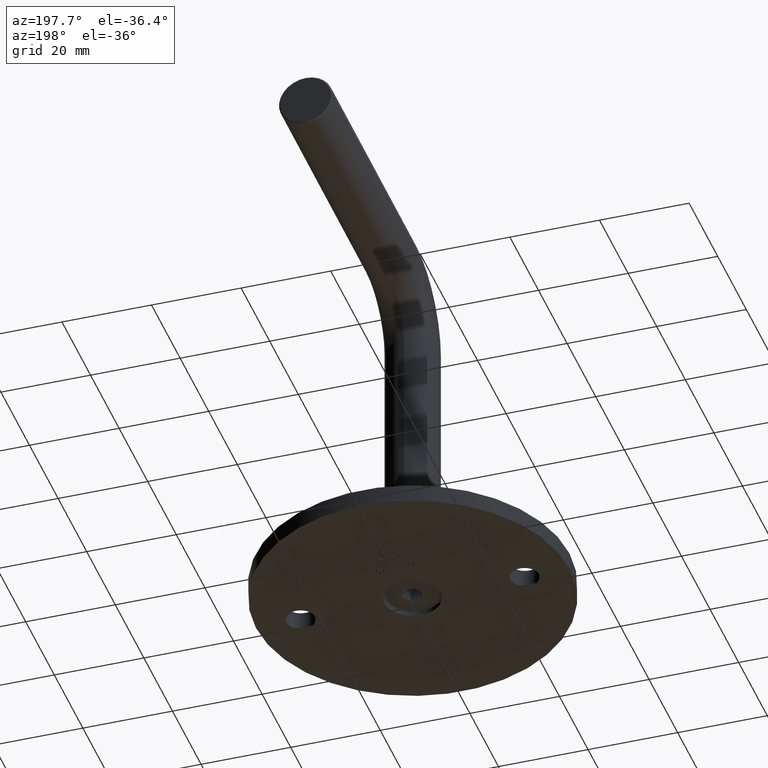
[diagram: clean part render]
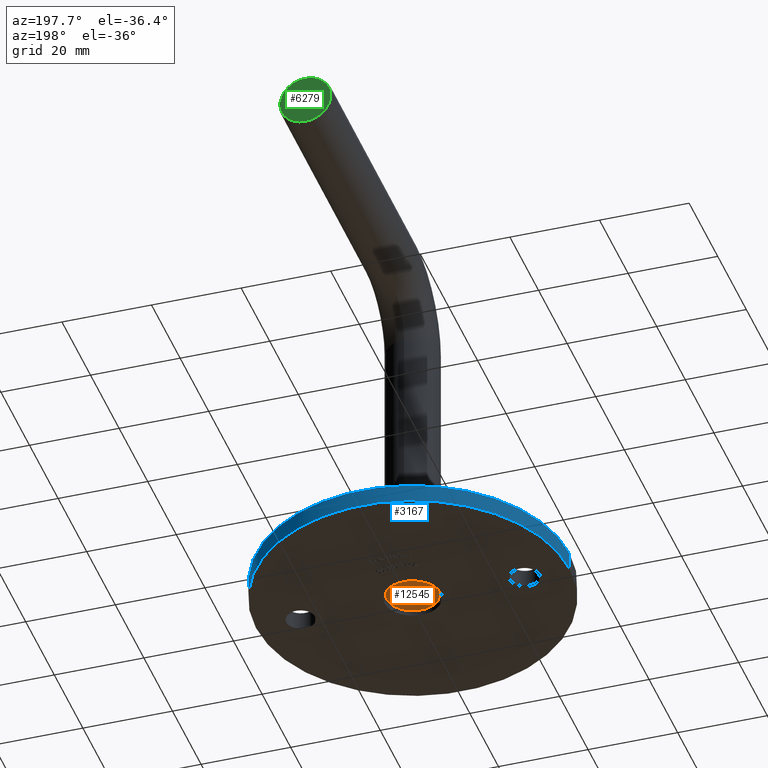
[diagram: same view with three faces highlighted in distinct colors, each labeled with its STEP entity id]
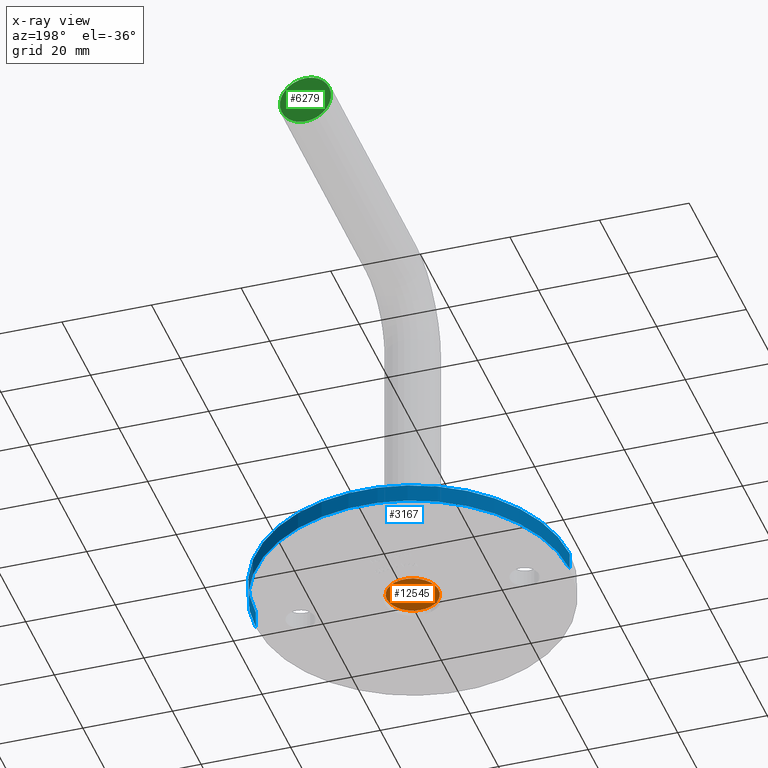
[diagram: x-ray of the same camera — body ghosted, the three highlighted faces saturated]
A machine part, auxiliary view with three faces highlighted in distinct colors.
The next image is the same camera in x-ray (body ghosted, the three faces saturated) — at least one of them is partly hidden behind the body in this view.
Their STEP definitions:

[orange] entity #12545 — the highlighted planar face has unit normal (0, -0, -1).
#76 = VERTEX_POINT ( 'NONE', #1816 ) ;
#123 = DIRECTION ( 'NONE',  ( -1.000000000000000000, 0.000000000000000000, -0.000000000000000000 ) ) ;
#284 = CARTESIAN_POINT ( 'NONE',  ( 0.000000000000000000, 0.000000000000000000, 0.000000000000000000 ) ) ;
#731 = VERTEX_POINT ( 'NONE', #7394 ) ;
#1443 = DIRECTION ( 'NONE',  ( 0.000000000000000000, 0.000000000000000000, 1.000000000000000000 ) ) ;
#1457 = CARTESIAN_POINT ( 'NONE',  ( 0.000000000000000000, -1.160474041071146267, 2.009999999999999787 ) ) ;
#1516 = ORIENTED_EDGE ( 'NONE', *, *, #4647, .T. ) ;
#1660 = ORIENTED_EDGE ( 'NONE', *, *, #4340, .T. ) ;
#1816 = CARTESIAN_POINT ( 'NONE',  ( 0.000000000000000000, -2.320948082142291646, 4.336808689942017736E-16 ) ) ;
#1885 = VERTEX_POINT ( 'NONE', #8277 ) ;
#1886 = CARTESIAN_POINT ( 'NONE',  ( 0.000000000000000000, 1.160474041071148710, 2.010000000000000231 ) ) ;
#1931 = EDGE_LOOP ( 'NONE', ( #15817, #10901 ) ) ;
#2143 = CARTESIAN_POINT ( 'NONE',  ( 0.000000000000000000, 0.000000000000000000, 0.000000000000000000 ) ) ;
#2361 = VECTOR ( 'NONE', #6000, 1000.000000000000000 ) ;
#2517 = CARTESIAN_POINT ( 'NONE',  ( 0.000000000000000000, -2.320948082142292535, 0.000000000000000000 ) ) ;
#2924 = LINE ( 'NONE', #14419, #2361 ) ;
#3149 = DIRECTION ( 'NONE',  ( 0.000000000000000000, -1.000000000000000000, 0.000000000000000000 ) ) ;
#3227 = CARTESIAN_POINT ( 'NONE',  ( 0.000000000000000000, 2.320948082142295643, 6.505213034913026604E-16 ) ) ;
#3305 = FACE_BOUND ( 'NONE', #6477, .T. ) ;
#3538 = VECTOR ( 'NONE', #3149, 1000.000000000000000 ) ;
#4185 = EDGE_CURVE ( 'NONE', #12327, #76, #9226, .T. ) ;
#4340 = EDGE_CURVE ( 'NONE', #76, #6825, #10029, .T. ) ;
#4647 = EDGE_CURVE ( 'NONE', #13674, #1885, #14924, .T. ) ;
#4704 = DIRECTION ( 'NONE',  ( 0.000000000000000000, -0.4999999999999998335, 0.8660254037844387076 ) ) ;
#4986 = DIRECTION ( 'NONE',  ( 0.000000000000000000, -0.4999999999999994449, -0.8660254037844389297 ) ) ;
#5281 = EDGE_CURVE ( 'NONE', #1885, #12327, #9247, .T. ) ;
#5396 = CARTESIAN_POINT ( 'NONE',  ( 0.000000000000000000, 1.160474041071148710, -2.009999999999999787 ) ) ;
#6000 = DIRECTION ( 'NONE',  ( 0.000000000000000000, 1.000000000000000000, 0.000000000000000000 ) ) ;
#6384 = CIRCLE ( 'NONE', #8235, 5.785000000000000142 ) ;
#6431 = DIRECTION ( 'NONE',  ( 0.000000000000000000, 0.4999999999999995004, -0.8660254037844389297 ) ) ;
#6477 = EDGE_LOOP ( 'NONE', ( #13742, #1660, #8752, #8900, #1516, #15799 ) ) ;
#6825 = VERTEX_POINT ( 'NONE', #10620 ) ;
#7394 = CARTESIAN_POINT ( 'NONE',  ( 0.000000000000000000, 0.000000000000000000, 5.785000000000000142 ) ) ;
#7459 = VECTOR ( 'NONE', #4704, 1000.000000000000114 ) ;
#7504 = PLANE ( 'NONE',  #10113 ) ;
#7669 = DIRECTION ( 'NONE',  ( 0.000000000000000000, 0.000000000000000000, 1.000000000000000000 ) ) ;
#7806 = VECTOR ( 'NONE', #10082, 999.9999999999998863 ) ;
#8044 = VECTOR ( 'NONE', #6431, 1000.000000000000114 ) ;
#8121 = EDGE_CURVE ( 'NONE', #9950, #13674, #10369, .T. ) ;
#8235 = AXIS2_PLACEMENT_3D ( 'NONE', #9135, #123, #1443 ) ;
#8277 = CARTESIAN_POINT ( 'NONE',  ( 0.000000000000000000, 1.160474041071148710, 2.010000000000000231 ) ) ;
#8410 = DIRECTION ( 'NONE',  ( -1.000000000000000000, 0.000000000000000000, -0.000000000000000000 ) ) ;
#8531 = AXIS2_PLACEMENT_3D ( 'NONE', #2143, #8410, #10956 ) ;
#8632 = VERTEX_POINT ( 'NONE', #9049 ) ;
#8752 = ORIENTED_EDGE ( 'NONE', *, *, #10552, .T. ) ;
#8900 = ORIENTED_EDGE ( 'NONE', *, *, #8121, .T. ) ;
#9049 = CARTESIAN_POINT ( 'NONE',  ( 0.000000000000000000, 7.084581733067438024E-16, -5.785000000000000142 ) ) ;
#9135 = CARTESIAN_POINT ( 'NONE',  ( 0.000000000000000000, 0.000000000000000000, 0.000000000000000000 ) ) ;
#9226 = LINE ( 'NONE', #12441, #12186 ) ;
#9247 = LINE ( 'NONE', #1886, #3538 ) ;
#9793 = CARTESIAN_POINT ( 'NONE',  ( 0.000000000000000000, 2.320948082142295643, 6.505213034913026604E-16 ) ) ;
#9950 = VERTEX_POINT ( 'NONE', #5396 ) ;
#9967 = CARTESIAN_POINT ( 'NONE',  ( 0.000000000000000000, 1.160474041071148710, -2.009999999999999787 ) ) ;
#10029 = LINE ( 'NONE', #2517, #8044 ) ;
#10082 = DIRECTION ( 'NONE',  ( 0.000000000000000000, 0.4999999999999995004, 0.8660254037844390407 ) ) ;
#10113 = AXIS2_PLACEMENT_3D ( 'NONE', #284, #13884, #7669 ) ;
#10190 = FACE_OUTER_BOUND ( 'NONE', #1931, .T. ) ;
#10369 = LINE ( 'NONE', #9967, #7806 ) ;
#10552 = EDGE_CURVE ( 'NONE', #6825, #9950, #2924, .T. ) ;
#10620 = CARTESIAN_POINT ( 'NONE',  ( 0.000000000000000000, -1.160474041071146045, -2.009999999999999787 ) ) ;
#10832 = CIRCLE ( 'NONE', #8531, 5.785000000000000142 ) ;
#10879 = EDGE_CURVE ( 'NONE', #731, #8632, #10832, .T. ) ;
#10901 = ORIENTED_EDGE ( 'NONE', *, *, #15125, .T. ) ;
#10956 = DIRECTION ( 'NONE',  ( 0.000000000000000000, 0.000000000000000000, 1.000000000000000000 ) ) ;
#12186 = VECTOR ( 'NONE', #4986, 1000.000000000000227 ) ;
#12327 = VERTEX_POINT ( 'NONE', #1457 ) ;
#12441 = CARTESIAN_POINT ( 'NONE',  ( 0.000000000000000000, -1.160474041071146267, 2.009999999999999787 ) ) ;
#12545 = ADVANCED_FACE ( 'NONE', ( #10190, #3305 ), #7504, .T. ) ;
#13674 = VERTEX_POINT ( 'NONE', #3227 ) ;
#13742 = ORIENTED_EDGE ( 'NONE', *, *, #4185, .T. ) ;
#13884 = DIRECTION ( 'NONE',  ( -1.000000000000000000, 0.000000000000000000, 0.000000000000000000 ) ) ;
#14419 = CARTESIAN_POINT ( 'NONE',  ( 0.000000000000000000, -1.160474041071146045, -2.009999999999999787 ) ) ;
#14924 = LINE ( 'NONE', #9793, #7459 ) ;
#15125 = EDGE_CURVE ( 'NONE', #8632, #731, #6384, .T. ) ;
#15799 = ORIENTED_EDGE ( 'NONE', *, *, #5281, .T. ) ;
#15817 = ORIENTED_EDGE ( 'NONE', *, *, #10879, .T. ) ;

[blue] entity #3167 — the highlighted cylindrical surface (partial cylindrical patch) has radius 35 mm, axis along (-0, -0, -1).
#369 = LINE ( 'NONE', #11060, #16292 ) ;
#608 = DIRECTION ( 'NONE',  ( 0.000000000000000000, 0.000000000000000000, 1.000000000000000000 ) ) ;
#1069 = ORIENTED_EDGE ( 'NONE', *, *, #5178, .F. ) ;
#1177 = DIRECTION ( 'NONE',  ( -0.000000000000000000, -0.000000000000000000, -1.000000000000000000 ) ) ;
#2581 = DIRECTION ( 'NONE',  ( 0.000000000000000000, 0.000000000000000000, 1.000000000000000000 ) ) ;
#2931 = CIRCLE ( 'NONE', #10402, 35.00000000000000711 ) ;
#3167 = ADVANCED_FACE ( 'NONE', ( #9672 ), #7289, .T. ) ;
#3936 = EDGE_CURVE ( 'NONE', #6382, #4895, #2931, .T. ) ;
#4519 = VECTOR ( 'NONE', #1177, 1000.000000000000000 ) ;
#4650 = EDGE_CURVE ( 'NONE', #7436, #6382, #369, .T. ) ;
#4895 = VERTEX_POINT ( 'NONE', #6523 ) ;
#5113 = CARTESIAN_POINT ( 'NONE',  ( 0.000000000000000000, 0.000000000000000000, 0.000000000000000000 ) ) ;
#5178 = EDGE_CURVE ( 'NONE', #7457, #4895, #11807, .T. ) ;
#5644 = ORIENTED_EDGE ( 'NONE', *, *, #3936, .T. ) ;
#5978 = DIRECTION ( 'NONE',  ( -0.000000000000000000, -0.000000000000000000, -1.000000000000000000 ) ) ;
#6382 = VERTEX_POINT ( 'NONE', #14681 ) ;
#6387 = DIRECTION ( 'NONE',  ( 1.000000000000000000, 0.000000000000000000, 0.000000000000000000 ) ) ;
#6523 = CARTESIAN_POINT ( 'NONE',  ( -35.00000000000000711, 0.000000000000000000, 0.000000000000000000 ) ) ;
#6943 = AXIS2_PLACEMENT_3D ( 'NONE', #10743, #608, #15599 ) ;
#7289 = CYLINDRICAL_SURFACE ( 'NONE', #10720, 35.00000000000000711 ) ;
#7399 = CARTESIAN_POINT ( 'NONE',  ( -35.00000000000000711, 0.000000000000000000, 4.000000000000000000 ) ) ;
#7436 = VERTEX_POINT ( 'NONE', #14919 ) ;
#7457 = VERTEX_POINT ( 'NONE', #7399 ) ;
#8927 = EDGE_LOOP ( 'NONE', ( #14058, #14929, #5644, #1069 ) ) ;
#9672 = FACE_OUTER_BOUND ( 'NONE', #8927, .T. ) ;
#9713 = CARTESIAN_POINT ( 'NONE',  ( 0.000000000000000000, 0.000000000000000000, 4.000000000000000000 ) ) ;
#10402 = AXIS2_PLACEMENT_3D ( 'NONE', #5113, #2581, #6387 ) ;
#10720 = AXIS2_PLACEMENT_3D ( 'NONE', #9713, #13496, #10973 ) ;
#10743 = CARTESIAN_POINT ( 'NONE',  ( 0.000000000000000000, 0.000000000000000000, 4.000000000000000000 ) ) ;
#10973 = DIRECTION ( 'NONE',  ( -1.000000000000000000, 0.000000000000000000, 0.000000000000000000 ) ) ;
#11060 = CARTESIAN_POINT ( 'NONE',  ( 35.00000000000000711, 4.286263797015737285E-15, 4.000000000000000000 ) ) ;
#11807 = LINE ( 'NONE', #13883, #4519 ) ;
#12126 = CIRCLE ( 'NONE', #6943, 35.00000000000000711 ) ;
#13496 = DIRECTION ( 'NONE',  ( -0.000000000000000000, -0.000000000000000000, -1.000000000000000000 ) ) ;
#13883 = CARTESIAN_POINT ( 'NONE',  ( -35.00000000000000711, 0.000000000000000000, 4.000000000000000000 ) ) ;
#14048 = EDGE_CURVE ( 'NONE', #7436, #7457, #12126, .T. ) ;
#14058 = ORIENTED_EDGE ( 'NONE', *, *, #14048, .F. ) ;
#14681 = CARTESIAN_POINT ( 'NONE',  ( 35.00000000000000711, 4.286263797015737285E-15, 0.000000000000000000 ) ) ;
#14919 = CARTESIAN_POINT ( 'NONE',  ( 35.00000000000000711, 4.286263797015737285E-15, 4.000000000000000000 ) ) ;
#14929 = ORIENTED_EDGE ( 'NONE', *, *, #4650, .T. ) ;
#15599 = DIRECTION ( 'NONE',  ( 1.000000000000000000, 0.000000000000000000, 0.000000000000000000 ) ) ;
#16292 = VECTOR ( 'NONE', #5978, 1000.000000000000000 ) ;

[green] entity #6279 — the highlighted planar face has unit normal (0, 1, 0).
#927 = AXIS2_PLACEMENT_3D ( 'NONE', #5333, #1558, #11627 ) ;
#1558 = DIRECTION ( 'NONE',  ( -0.000000000000000000, 1.000000000000000000, 6.123233995736766036E-17 ) ) ;
#3742 = EDGE_CURVE ( 'NONE', #13841, #11954, #15119, .T. ) ;
#5333 = CARTESIAN_POINT ( 'NONE',  ( 0.000000000000000000, 74.99999999999998579, 74.99999999999998579 ) ) ;
#6279 = ADVANCED_FACE ( 'NONE', ( #9622 ), #11676, .T. ) ;
#6628 = ORIENTED_EDGE ( 'NONE', *, *, #8426, .T. ) ;
#7464 = DIRECTION ( 'NONE',  ( 0.000000000000000000, 1.000000000000000000, 6.123233995736766036E-17 ) ) ;
#7651 = CARTESIAN_POINT ( 'NONE',  ( 0.000000000000000000, 74.99999999999998579, 69.29999999999992610 ) ) ;
#7681 = EDGE_LOOP ( 'NONE', ( #14181, #6628 ) ) ;
#7875 = CIRCLE ( 'NONE', #15353, 5.700000000000052580 ) ;
#8426 = EDGE_CURVE ( 'NONE', #11954, #13841, #7875, .T. ) ;
#9622 = FACE_OUTER_BOUND ( 'NONE', #7681, .T. ) ;
#10516 = CARTESIAN_POINT ( 'NONE',  ( 7.164183775012050935E-16, 74.99999999999998579, 80.70000000000003126 ) ) ;
#10979 = DIRECTION ( 'NONE',  ( 0.000000000000000000, 1.000000000000000000, 6.123233995736766036E-17 ) ) ;
#11112 = CARTESIAN_POINT ( 'NONE',  ( 0.000000000000000000, 74.99999999999998579, 74.99999999999998579 ) ) ;
#11627 = DIRECTION ( 'NONE',  ( 1.000000000000000000, 0.000000000000000000, 0.000000000000000000 ) ) ;
#11676 = PLANE ( 'NONE',  #927 ) ;
#11954 = VERTEX_POINT ( 'NONE', #10516 ) ;
#12363 = DIRECTION ( 'NONE',  ( 0.000000000000000000, 0.000000000000000000, 1.000000000000000000 ) ) ;
#13841 = VERTEX_POINT ( 'NONE', #7651 ) ;
#14181 = ORIENTED_EDGE ( 'NONE', *, *, #3742, .T. ) ;
#14290 = AXIS2_PLACEMENT_3D ( 'NONE', #15948, #10979, #15999 ) ;
#15119 = CIRCLE ( 'NONE', #14290, 5.700000000000052580 ) ;
#15353 = AXIS2_PLACEMENT_3D ( 'NONE', #11112, #7464, #12363 ) ;
#15948 = CARTESIAN_POINT ( 'NONE',  ( 0.000000000000000000, 74.99999999999998579, 74.99999999999998579 ) ) ;
#15999 = DIRECTION ( 'NONE',  ( 0.000000000000000000, 0.000000000000000000, 1.000000000000000000 ) ) ;